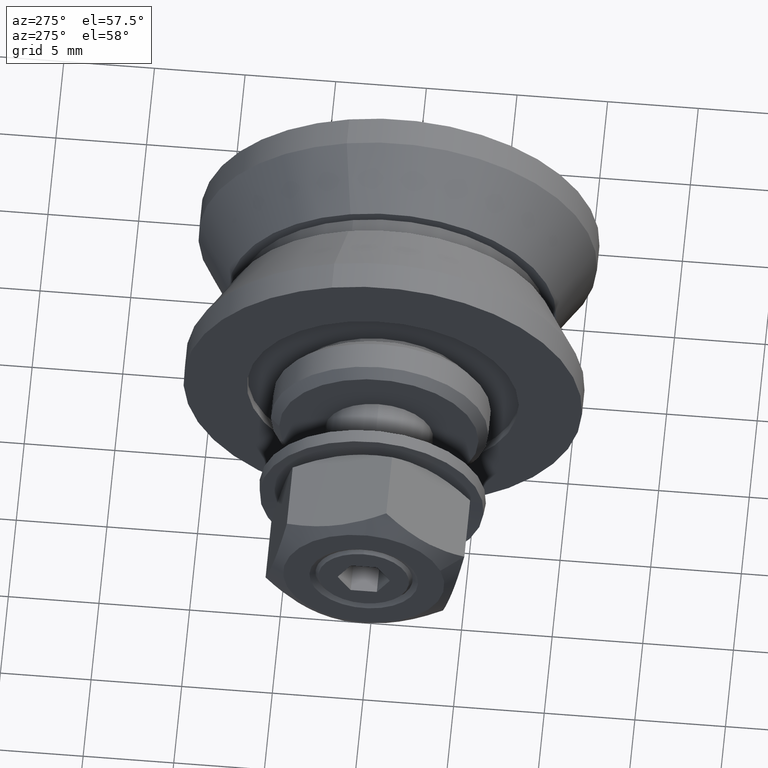
[diagram: clean part render]
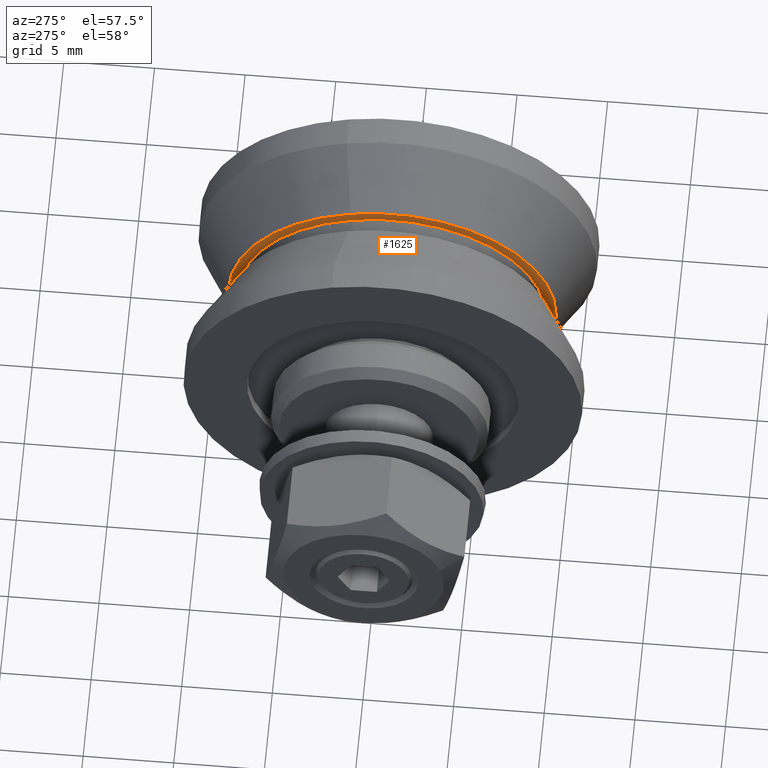
[diagram: same view with one face highlighted and labeled with its STEP entity id]
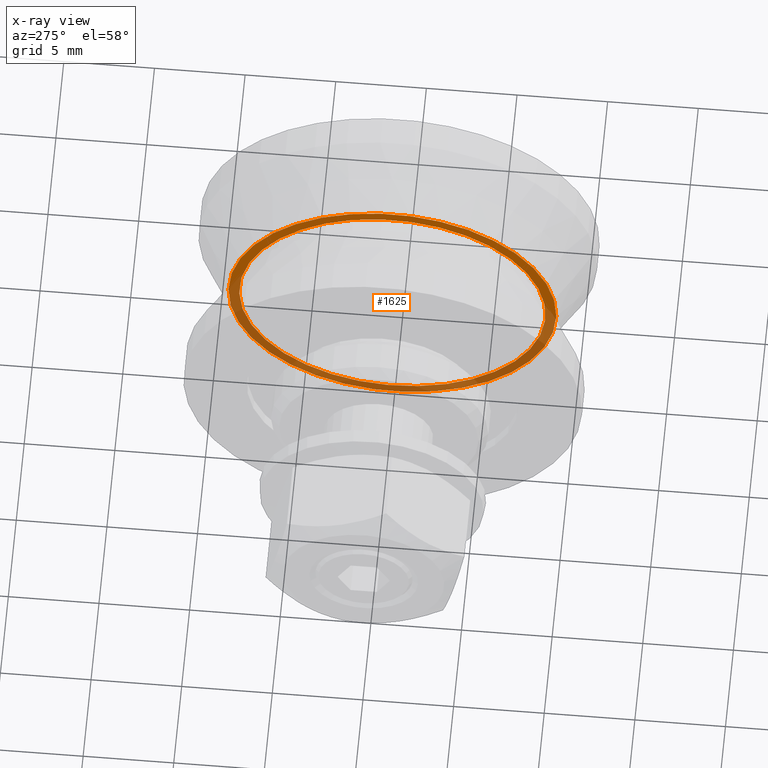
[diagram: x-ray of the same camera — body ghosted, the highlighted face saturated]
A machine part, auxiliary view. The second image highlights one B-rep face of the part: STEP entity #1625.
The next image is the same camera in x-ray: the body ghosted, the highlighted face saturated — about 53% of this face is hidden behind the body in this view.
In plain terms, the highlighted planar face has unit normal (-1, 0, 0).
Its self-contained STEP definition (entity closure, byte-faithful):
#100=FACE_BOUND('',#355,.T.);
#140=PLANE('',#1914);
#243=FACE_OUTER_BOUND('',#354,.T.);
#354=EDGE_LOOP('',(#1317));
#355=EDGE_LOOP('',(#1318));
#691=CIRCLE('',#1913,9.04403995615804);
#692=CIRCLE('',#1915,8.45);
#809=VERTEX_POINT('',#2776);
#810=VERTEX_POINT('',#2780);
#989=EDGE_CURVE('',#809,#809,#691,.T.);
#991=EDGE_CURVE('',#810,#810,#692,.T.);
#1317=ORIENTED_EDGE('',*,*,#989,.T.);
#1318=ORIENTED_EDGE('',*,*,#991,.F.);
#1625=ADVANCED_FACE('',(#243,#100),#140,.T.);
#1913=AXIS2_PLACEMENT_3D('',#2777,#2273,#2274);
#1914=AXIS2_PLACEMENT_3D('',#2779,#2276,#2277);
#1915=AXIS2_PLACEMENT_3D('',#2781,#2278,#2279);
#2273=DIRECTION('center_axis',(1.,0.,0.));
#2274=DIRECTION('ref_axis',(0.,1.,0.));
#2276=DIRECTION('center_axis',(1.,0.,0.));
#2277=DIRECTION('ref_axis',(0.,0.,-1.));
#2278=DIRECTION('center_axis',(1.,0.,0.));
#2279=DIRECTION('ref_axis',(0.,1.,0.));
#2776=CARTESIAN_POINT('',(-0.549999999999999,-9.04403995615804,-1.10757545836697E-15));
#2777=CARTESIAN_POINT('Origin',(-0.55,0.,0.));
#2779=CARTESIAN_POINT('Origin',(-0.55,8.74701997807902,0.));
#2780=CARTESIAN_POINT('',(-0.55,-8.45,-1.03482654527951E-15));
#2781=CARTESIAN_POINT('Origin',(-0.55,0.,0.));